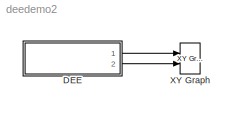
MODEL deedemo2
KIND model
CONFIG AbsTol = 1e-6
CONFIG FixedStep = auto
CONFIG MaxStep = auto
CONFIG PreLoadFcn = lorenzi
CONFIG RelTol = 1e-3
CONFIG Solver = ode45
CONFIG SolverMode = SingleTasking
CONFIG StartTime = 0.0
CONFIG StopTime = 999999
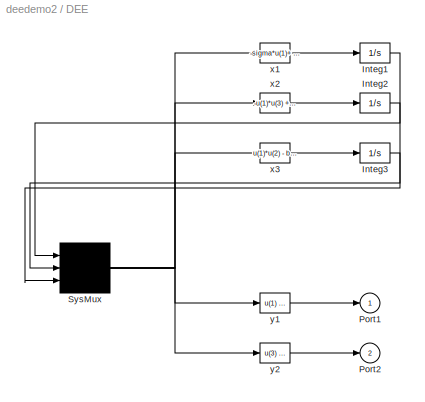
BLOCK [SubSystem] DEE
  MaskDisplay = disp('Lorenz Attractor')
  MaskIconFrame = on
  MaskIconOpaque = on
  MaskIconRotate = none
  MaskIconUnits = autoscale
  MaskType = Differential Equation Editor (DEE)
  OpenFcn = diffeqed
  Ports = [0, 2, 0, 0, 0]
  ShowPortLabels = on
BLOCK [Integrator] DEE/Integ1
  AbsoluteTolerance = auto
  ExternalReset = none
  InitialCondition = 1
  InitialConditionSource = internal
  LimitOutput = off
  LowerSaturationLimit = -inf
  Ports = [1, 1, 0, 0, 0]
  ShowSaturationPort = off
  ShowStatePort = off
  UpperSaturationLimit = inf
BLOCK [Integrator] DEE/Integ2
  AbsoluteTolerance = auto
  ExternalReset = none
  InitialCondition = 1
  InitialConditionSource = internal
  LimitOutput = off
  LowerSaturationLimit = -inf
  Ports = [1, 1, 0, 0, 0]
  ShowSaturationPort = off
  ShowStatePort = off
  UpperSaturationLimit = inf
BLOCK [Integrator] DEE/Integ3
  AbsoluteTolerance = auto
  ExternalReset = none
  InitialCondition = 1
  InitialConditionSource = internal
  LimitOutput = off
  LowerSaturationLimit = -inf
  Ports = [1, 1, 0, 0, 0]
  ShowSaturationPort = off
  ShowStatePort = off
  UpperSaturationLimit = inf
BLOCK [Outport] DEE/Port1
  InitialOutput = 0
  OutputWhenDisabled = held
  Port = 1
BLOCK [Outport] DEE/Port2
  InitialOutput = 0
  OutputWhenDisabled = held
  Port = 2
BLOCK [Mux] DEE/SysMux
  DisplayOption = none
  Inputs = 3
  Ports = [3, 1, 0, 0, 0]
BLOCK [Fcn] DEE/x1
  Expr = -sigma*u(1)+ sigma*u(2)
BLOCK [Fcn] DEE/x2
  Expr = -u(1)*u(3)  + rho*u(1) - u(2)
BLOCK [Fcn] DEE/x3
  Expr = u(1)*u(2) - beta*u(3)   +u(1)
BLOCK [Fcn] DEE/y1
  Expr = u(1)
BLOCK [Fcn] DEE/y2
  Expr = u(3)
BLOCK [Reference] XY Graph  REF=simulink3/Sinks/XY Graph
  Ports = [2, 0, 0, 0, 0]
  SourceBlock = simulink3/Sinks/XY Graph
  SourceType = XY scope.
  st = 0.025
  xmax = 30
  xmin = -30
  ymax = 50
  ymin = 0
LINE DEE/Integ1:1 -> DEE/SysMux:1
LINE DEE/Integ2:1 -> DEE/SysMux:2
LINE DEE/Integ3:1 -> DEE/SysMux:3
NET DEE/SysMux:1 -> DEE/x1:1, DEE/x2:1, DEE/x3:1, DEE/y1:1, DEE/y2:1
LINE DEE/x1:1 -> DEE/Integ1:1
LINE DEE/x2:1 -> DEE/Integ2:1
LINE DEE/x3:1 -> DEE/Integ3:1
LINE DEE/y1:1 -> DEE/Port1:1
LINE DEE/y2:1 -> DEE/Port2:1
LINE DEE:1 -> XY Graph:1
LINE DEE:2 -> XY Graph:2
note: NET lines group one-source signal fan-out (src -> all destinations, sorted); 1:1 wires keep LINE
